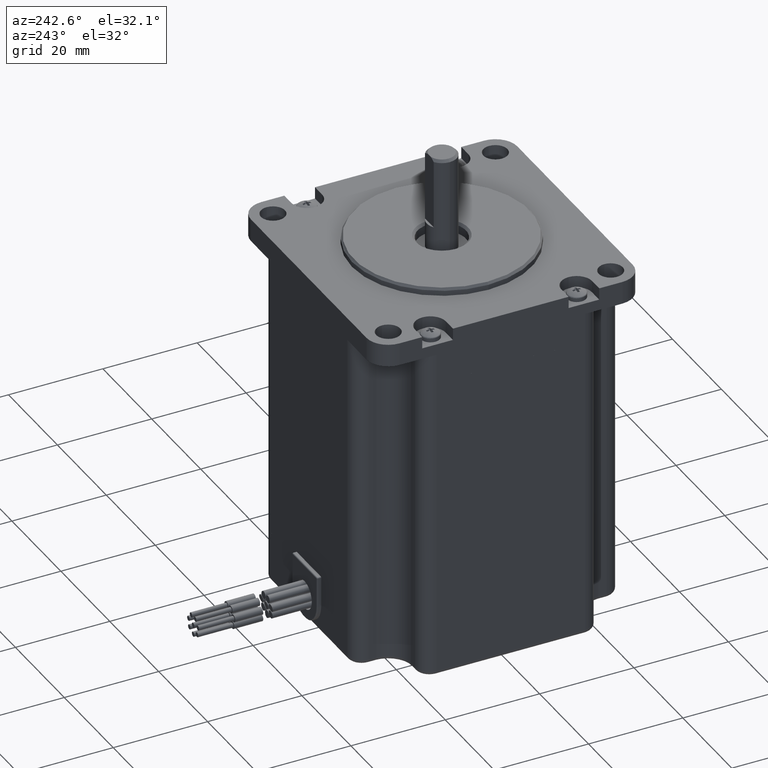
[diagram: clean part render]
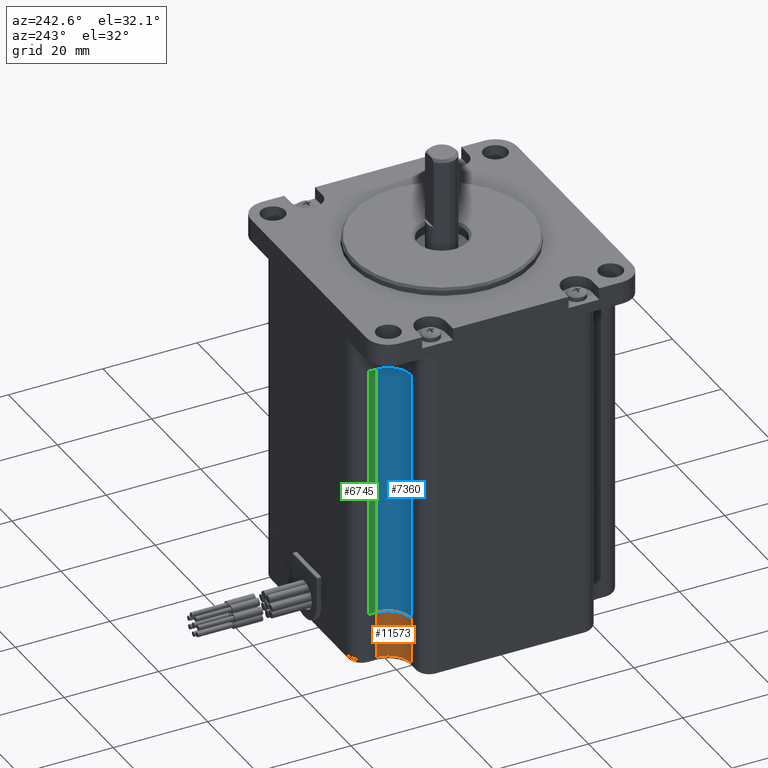
[diagram: same view with three faces highlighted in distinct colors, each labeled with its STEP entity id]
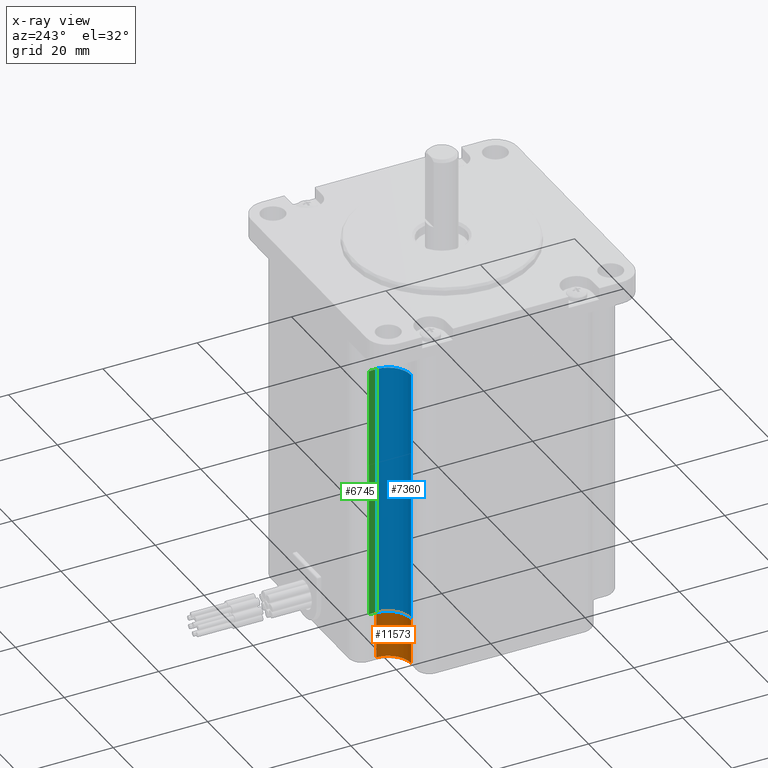
[diagram: x-ray of the same camera — body ghosted, the three highlighted faces saturated]
A machine part, auxiliary view with three faces highlighted in distinct colors.
The next image is the same camera in x-ray (body ghosted, the three faces saturated) — at least one of them is partly hidden behind the body in this view.
Their STEP definitions:

[orange] entity #11573 — the highlighted cylindrical surface (edge-blend (fillet) strip) has radius 4.82 mm, axis along (0, 0, 1).
#29 = AXIS2_PLACEMENT_3D ( 'NONE', #9715, #2245, #461 ) ;
#69 = ORIENTED_EDGE ( 'NONE', *, *, #2505, .F. ) ;
#307 = CARTESIAN_POINT ( 'NONE',  ( -23.56999999999997900, 18.75000000000000000, -40.00000000000000000 ) ) ;
#459 = VECTOR ( 'NONE', #5976, 1000.000000000000000 ) ;
#461 = DIRECTION ( 'NONE',  ( 1.000000000000000000, 0.0000000000000000000, 0.0000000000000000000 ) ) ;
#512 = DIRECTION ( 'NONE',  ( -0.0000000000000000000, -0.0000000000000000000, -1.000000000000000000 ) ) ;
#1292 = DIRECTION ( 'NONE',  ( 1.000000000000000000, 0.0000000000000000000, 0.0000000000000000000 ) ) ;
#1732 = EDGE_CURVE ( 'NONE', #11125, #6978, #4071, .T. ) ;
#1741 = DIRECTION ( 'NONE',  ( -0.0000000000000000000, -0.0000000000000000000, 1.000000000000000000 ) ) ;
#2191 = VERTEX_POINT ( 'NONE', #8940 ) ;
#2245 = DIRECTION ( 'NONE',  ( -0.0000000000000000000, -0.0000000000000000000, -1.000000000000000000 ) ) ;
#2377 = CARTESIAN_POINT ( 'NONE',  ( -23.57000000000000000, 23.57000000000000000, -30.00000000000000000 ) ) ;
#2505 = EDGE_CURVE ( 'NONE', #2191, #2976, #8516, .T. ) ;
#2739 = DIRECTION ( 'NONE',  ( 0.0000000000000000000, 0.0000000000000000000, 1.000000000000000000 ) ) ;
#2976 = VERTEX_POINT ( 'NONE', #307 ) ;
#4071 = LINE ( 'NONE', #6496, #5537 ) ;
#4392 = CIRCLE ( 'NONE', #8491, 4.819999999999997600 ) ;
#4735 = EDGE_CURVE ( 'NONE', #11125, #2976, #10324, .T. ) ;
#5325 = ORIENTED_EDGE ( 'NONE', *, *, #4735, .T. ) ;
#5537 = VECTOR ( 'NONE', #1741, 1000.000000000000000 ) ;
#5976 = DIRECTION ( 'NONE',  ( 0.0000000000000000000, 0.0000000000000000000, -1.000000000000000000 ) ) ;
#6496 = CARTESIAN_POINT ( 'NONE',  ( -18.75000000000000400, 23.57000000000000400, -30.00000000000000000 ) ) ;
#6933 = CARTESIAN_POINT ( 'NONE',  ( -23.56999999999997900, 18.75000000000000000, -41.00000000000000000 ) ) ;
#6978 = VERTEX_POINT ( 'NONE', #11909 ) ;
#7182 = ORIENTED_EDGE ( 'NONE', *, *, #11982, .F. ) ;
#7412 = CARTESIAN_POINT ( 'NONE',  ( -23.57000000000000000, 23.57000000000000000, -30.00000000000000000 ) ) ;
#7509 = CARTESIAN_POINT ( 'NONE',  ( -18.75000000000000400, 23.57000000000000400, -40.00000000000000000 ) ) ;
#7932 = FACE_OUTER_BOUND ( 'NONE', #9385, .T. ) ;
#8434 = ORIENTED_EDGE ( 'NONE', *, *, #1732, .F. ) ;
#8491 = AXIS2_PLACEMENT_3D ( 'NONE', #2377, #512, #1292 ) ;
#8516 = LINE ( 'NONE', #6933, #459 ) ;
#8808 = AXIS2_PLACEMENT_3D ( 'NONE', #7412, #2739, #11986 ) ;
#8940 = CARTESIAN_POINT ( 'NONE',  ( -23.56999999999997900, 18.75000000000000000, -30.00000000000000000 ) ) ;
#9385 = EDGE_LOOP ( 'NONE', ( #8434, #5325, #69, #7182 ) ) ;
#9715 = CARTESIAN_POINT ( 'NONE',  ( -23.57000000000000000, 23.57000000000000000, -40.00000000000000000 ) ) ;
#10324 = CIRCLE ( 'NONE', #29, 4.819999999999997600 ) ;
#10703 = CYLINDRICAL_SURFACE ( 'NONE', #8808, 4.819999999999997600 ) ;
#11125 = VERTEX_POINT ( 'NONE', #7509 ) ;
#11573 = ADVANCED_FACE ( 'NONE', ( #7932 ), #10703, .F. ) ;
#11909 = CARTESIAN_POINT ( 'NONE',  ( -18.75000000000000400, 23.57000000000000400, -30.00000000000000000 ) ) ;
#11982 = EDGE_CURVE ( 'NONE', #6978, #2191, #4392, .T. ) ;
#11986 = DIRECTION ( 'NONE',  ( 1.000000000000000000, 0.0000000000000000000, 0.0000000000000000000 ) ) ;

[blue] entity #7360 — the highlighted cylindrical surface (edge-blend (fillet) strip) has radius 4.82 mm, axis along (0, 0, 1).
#705 = CARTESIAN_POINT ( 'NONE',  ( -23.57000000000000000, 18.75000000000000000, 0.0000000000000000000 ) ) ;
#1163 = CARTESIAN_POINT ( 'NONE',  ( -23.57000000000000000, 18.75000000000000000, -54.00000000000000000 ) ) ;
#1634 = CYLINDRICAL_SURFACE ( 'NONE', #2006, 4.820000000000001200 ) ;
#2004 = CIRCLE ( 'NONE', #8614, 4.820000000000001200 ) ;
#2006 = AXIS2_PLACEMENT_3D ( 'NONE', #7823, #10494, #9688 ) ;
#2434 = VERTEX_POINT ( 'NONE', #2754 ) ;
#2754 = CARTESIAN_POINT ( 'NONE',  ( -23.57000000000000000, 18.75000000000000000, -54.00000000000000000 ) ) ;
#2755 = CARTESIAN_POINT ( 'NONE',  ( -23.57000000000000000, 23.57000000000000000, -54.00000000000000000 ) ) ;
#2899 = DIRECTION ( 'NONE',  ( -0.0000000000000000000, -0.0000000000000000000, 1.000000000000000000 ) ) ;
#2914 = VERTEX_POINT ( 'NONE', #3063 ) ;
#3054 = VECTOR ( 'NONE', #8569, 1000.000000000000000 ) ;
#3063 = CARTESIAN_POINT ( 'NONE',  ( -18.75000000000000000, 23.57000000000000000, 0.0000000000000000000 ) ) ;
#3815 = VERTEX_POINT ( 'NONE', #705 ) ;
#4479 = LINE ( 'NONE', #10251, #9182 ) ;
#4520 = EDGE_CURVE ( 'NONE', #5799, #2914, #4479, .T. ) ;
#4615 = DIRECTION ( 'NONE',  ( 0.0000000000000000000, -0.0000000000000000000, 1.000000000000000000 ) ) ;
#5027 = DIRECTION ( 'NONE',  ( 1.000000000000000000, 0.0000000000000000000, 0.0000000000000000000 ) ) ;
#5360 = DIRECTION ( 'NONE',  ( 1.000000000000000000, 0.0000000000000000000, 0.0000000000000000000 ) ) ;
#5799 = VERTEX_POINT ( 'NONE', #8793 ) ;
#6277 = LINE ( 'NONE', #1163, #3054 ) ;
#6481 = FACE_OUTER_BOUND ( 'NONE', #11169, .T. ) ;
#6540 = EDGE_CURVE ( 'NONE', #2434, #5799, #6644, .T. ) ;
#6644 = CIRCLE ( 'NONE', #9060, 4.820000000000001200 ) ;
#6930 = ORIENTED_EDGE ( 'NONE', *, *, #4520, .F. ) ;
#7360 = ADVANCED_FACE ( 'NONE', ( #6481 ), #1634, .F. ) ;
#7823 = CARTESIAN_POINT ( 'NONE',  ( -23.57000000000000000, 23.57000000000000000, -54.00000000000000000 ) ) ;
#8569 = DIRECTION ( 'NONE',  ( -0.0000000000000000000, -0.0000000000000000000, 1.000000000000000000 ) ) ;
#8614 = AXIS2_PLACEMENT_3D ( 'NONE', #8807, #9615, #5027 ) ;
#8793 = CARTESIAN_POINT ( 'NONE',  ( -18.75000000000000000, 23.57000000000000000, -54.00000000000000000 ) ) ;
#8807 = CARTESIAN_POINT ( 'NONE',  ( -23.57000000000000000, 23.57000000000000000, 0.0000000000000000000 ) ) ;
#8847 = ORIENTED_EDGE ( 'NONE', *, *, #10015, .T. ) ;
#9060 = AXIS2_PLACEMENT_3D ( 'NONE', #2755, #4615, #5360 ) ;
#9182 = VECTOR ( 'NONE', #2899, 1000.000000000000000 ) ;
#9386 = EDGE_CURVE ( 'NONE', #2434, #3815, #6277, .T. ) ;
#9615 = DIRECTION ( 'NONE',  ( 0.0000000000000000000, -0.0000000000000000000, 1.000000000000000000 ) ) ;
#9688 = DIRECTION ( 'NONE',  ( 1.000000000000000000, 0.0000000000000000000, 0.0000000000000000000 ) ) ;
#10015 = EDGE_CURVE ( 'NONE', #3815, #2914, #2004, .T. ) ;
#10251 = CARTESIAN_POINT ( 'NONE',  ( -18.75000000000000000, 23.57000000000000000, -54.00000000000000000 ) ) ;
#10494 = DIRECTION ( 'NONE',  ( -0.0000000000000000000, -0.0000000000000000000, 1.000000000000000000 ) ) ;
#10943 = ORIENTED_EDGE ( 'NONE', *, *, #6540, .F. ) ;
#11169 = EDGE_LOOP ( 'NONE', ( #8847, #6930, #10943, #11520 ) ) ;
#11520 = ORIENTED_EDGE ( 'NONE', *, *, #9386, .T. ) ;

[green] entity #6745 — the highlighted planar face has unit normal (1, 0, 0).
#931 = VERTEX_POINT ( 'NONE', #3339 ) ;
#1256 = VERTEX_POINT ( 'NONE', #2005 ) ;
#2005 = CARTESIAN_POINT ( 'NONE',  ( -18.75000000000000000, 25.19999999999999900, 0.0000000000000000000 ) ) ;
#2152 = CARTESIAN_POINT ( 'NONE',  ( -18.75000000000000000, 23.57000000000000000, 0.0000000000000000000 ) ) ;
#2171 = ORIENTED_EDGE ( 'NONE', *, *, #4282, .F. ) ;
#2788 = AXIS2_PLACEMENT_3D ( 'NONE', #11214, #4786, #6602 ) ;
#2899 = DIRECTION ( 'NONE',  ( -0.0000000000000000000, -0.0000000000000000000, 1.000000000000000000 ) ) ;
#2914 = VERTEX_POINT ( 'NONE', #3063 ) ;
#3063 = CARTESIAN_POINT ( 'NONE',  ( -18.75000000000000000, 23.57000000000000000, 0.0000000000000000000 ) ) ;
#3339 = CARTESIAN_POINT ( 'NONE',  ( -18.75000000000000000, 25.19999999999999900, -54.00000000000000000 ) ) ;
#4282 = EDGE_CURVE ( 'NONE', #5799, #931, #5811, .T. ) ;
#4375 = CARTESIAN_POINT ( 'NONE',  ( -18.75000000000000000, 23.57000000000000000, -54.00000000000000000 ) ) ;
#4479 = LINE ( 'NONE', #10251, #9182 ) ;
#4520 = EDGE_CURVE ( 'NONE', #5799, #2914, #4479, .T. ) ;
#4660 = PLANE ( 'NONE',  #2788 ) ;
#4786 = DIRECTION ( 'NONE',  ( 1.000000000000000000, -0.0000000000000000000, 0.0000000000000000000 ) ) ;
#4967 = DIRECTION ( 'NONE',  ( 0.0000000000000000000, 1.000000000000000000, 0.0000000000000000000 ) ) ;
#5312 = FACE_OUTER_BOUND ( 'NONE', #11072, .T. ) ;
#5579 = VECTOR ( 'NONE', #9464, 1000.000000000000000 ) ;
#5799 = VERTEX_POINT ( 'NONE', #8793 ) ;
#5811 = LINE ( 'NONE', #4375, #9325 ) ;
#5857 = ORIENTED_EDGE ( 'NONE', *, *, #4520, .T. ) ;
#5881 = LINE ( 'NONE', #8525, #5579 ) ;
#6332 = EDGE_CURVE ( 'NONE', #931, #1256, #5881, .T. ) ;
#6602 = DIRECTION ( 'NONE',  ( 0.0000000000000000000, 0.0000000000000000000, -1.000000000000000000 ) ) ;
#6745 = ADVANCED_FACE ( 'NONE', ( #5312 ), #4660, .F. ) ;
#6888 = ORIENTED_EDGE ( 'NONE', *, *, #9370, .T. ) ;
#8525 = CARTESIAN_POINT ( 'NONE',  ( -18.75000000000000000, 25.19999999999999900, -54.00000000000000000 ) ) ;
#8793 = CARTESIAN_POINT ( 'NONE',  ( -18.75000000000000000, 23.57000000000000000, -54.00000000000000000 ) ) ;
#9182 = VECTOR ( 'NONE', #2899, 1000.000000000000000 ) ;
#9325 = VECTOR ( 'NONE', #11863, 1000.000000000000000 ) ;
#9370 = EDGE_CURVE ( 'NONE', #2914, #1256, #11973, .T. ) ;
#9464 = DIRECTION ( 'NONE',  ( -0.0000000000000000000, -0.0000000000000000000, 1.000000000000000000 ) ) ;
#9614 = ORIENTED_EDGE ( 'NONE', *, *, #6332, .F. ) ;
#10251 = CARTESIAN_POINT ( 'NONE',  ( -18.75000000000000000, 23.57000000000000000, -54.00000000000000000 ) ) ;
#10359 = VECTOR ( 'NONE', #4967, 1000.000000000000000 ) ;
#11072 = EDGE_LOOP ( 'NONE', ( #6888, #9614, #2171, #5857 ) ) ;
#11214 = CARTESIAN_POINT ( 'NONE',  ( -18.75000000000000000, 23.57000000000000000, -54.00000000000000000 ) ) ;
#11863 = DIRECTION ( 'NONE',  ( 0.0000000000000000000, 1.000000000000000000, 0.0000000000000000000 ) ) ;
#11973 = LINE ( 'NONE', #2152, #10359 ) ;